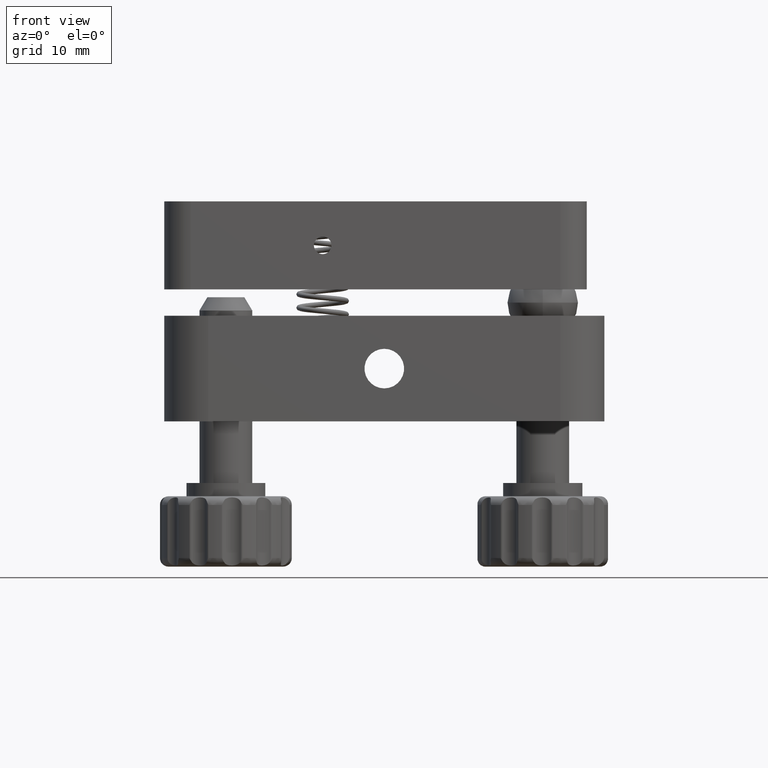
[diagram: clean part render]
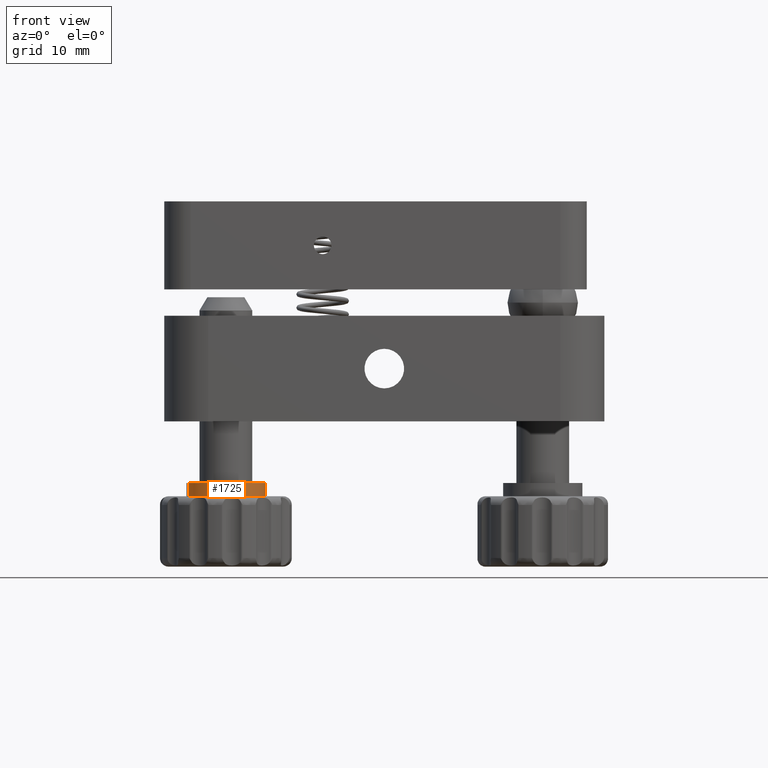
[diagram: same view with one face highlighted and labeled with its STEP entity id]
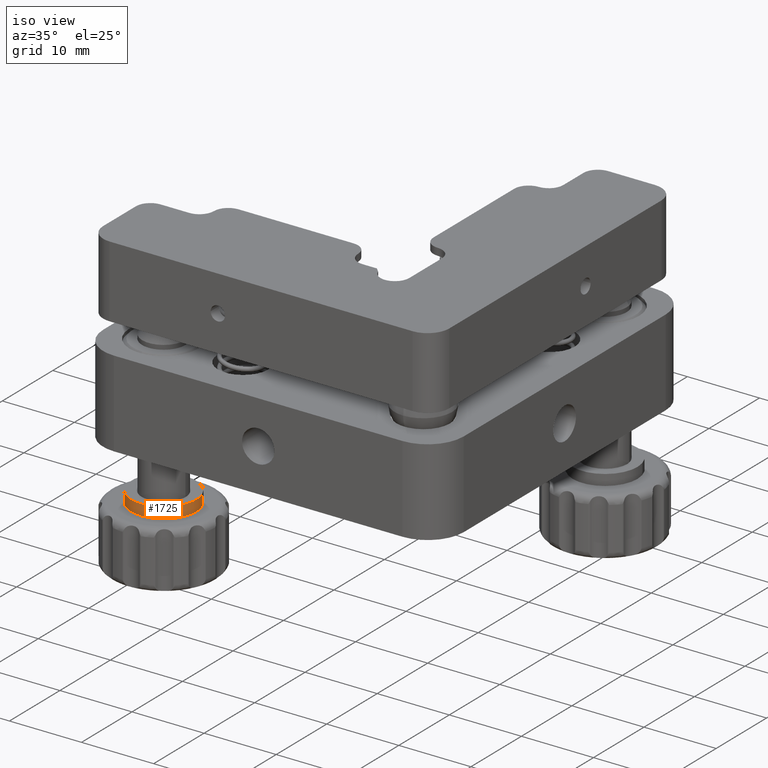
[diagram: same view with one face highlighted and labeled with its STEP entity id]
A machine part, front view. The second image highlights one B-rep face of the part: STEP entity #1725.
A second angle (iso view) of the same face is appended — the face is thin or edge-on in the first view.
In plain terms, the highlighted cylindrical surface (partial cylindrical patch) has radius 4.5 mm, axis along (-0, 0, -1).
Its self-contained STEP definition (entity closure, byte-faithful):
#269 = VECTOR ( 'NONE', #298, 1000.000000000000000 ) ;
#298 = DIRECTION ( 'NONE',  ( -2.193185720357693324E-18, 6.611512007216132848E-17, -1.000000000000000000 ) ) ;
#439 = AXIS2_PLACEMENT_3D ( 'NONE', #7443, #5000, #12826 ) ;
#591 = DIRECTION ( 'NONE',  ( -0.9363679154104279645, -0.3510201233404284249, 0.000000000000000000 ) ) ;
#615 = VERTEX_POINT ( 'NONE', #11719 ) ;
#853 = CARTESIAN_POINT ( 'NONE',  ( -13.78634438065303591, -16.42040944496808663, -22.00041507641944705 ) ) ;
#1064 = DIRECTION ( 'NONE',  ( 0.9363679154104279645, 0.3510201233404284249, 0.000000000000000000 ) ) ;
#1232 = DIRECTION ( 'NONE',  ( 2.193185720357693324E-18, -6.611512007216132848E-17, 1.000000000000000000 ) ) ;
#1301 = CARTESIAN_POINT ( 'NONE',  ( -22.21365561934689836, -19.57959055503194890, -22.00041507641944705 ) ) ;
#1624 = VERTEX_POINT ( 'NONE', #12741 ) ;
#1630 = EDGE_LOOP ( 'NONE', ( #7675, #8786, #4552, #9606 ) ) ;
#1725 = ADVANCED_FACE ( 'NONE', ( #3682 ), #15468, .T. ) ;
#1852 = EDGE_CURVE ( 'NONE', #615, #1624, #4027, .T. ) ;
#3555 = CARTESIAN_POINT ( 'NONE',  ( -17.99999999999996092, -18.00000000000000355, -23.50041507641943284 ) ) ;
#3682 = FACE_OUTER_BOUND ( 'NONE', #1630, .T. ) ;
#4027 = LINE ( 'NONE', #1301, #15895 ) ;
#4552 = ORIENTED_EDGE ( 'NONE', *, *, #1852, .T. ) ;
#4747 = CARTESIAN_POINT ( 'NONE',  ( -13.78634438065302881, -16.42040944496808663, -23.50041507641943284 ) ) ;
#4749 = CIRCLE ( 'NONE', #7822, 4.500000000000013323 ) ;
#5000 = DIRECTION ( 'NONE',  ( -2.193185720357693324E-18, 6.611512007216132848E-17, -1.000000000000000000 ) ) ;
#5829 = LINE ( 'NONE', #12241, #269 ) ;
#7443 = CARTESIAN_POINT ( 'NONE',  ( -17.99999999999996092, -18.00000000000001421, -22.00041507641944705 ) ) ;
#7675 = ORIENTED_EDGE ( 'NONE', *, *, #16825, .F. ) ;
#7701 = DIRECTION ( 'NONE',  ( -2.193185720357693324E-18, 6.611512007216132848E-17, -1.000000000000000000 ) ) ;
#7822 = AXIS2_PLACEMENT_3D ( 'NONE', #13272, #1232, #1064 ) ;
#8650 = AXIS2_PLACEMENT_3D ( 'NONE', #3555, #11555, #591 ) ;
#8786 = ORIENTED_EDGE ( 'NONE', *, *, #10225, .F. ) ;
#9104 = VERTEX_POINT ( 'NONE', #4747 ) ;
#9606 = ORIENTED_EDGE ( 'NONE', *, *, #15154, .T. ) ;
#10225 = EDGE_CURVE ( 'NONE', #615, #13696, #4749, .T. ) ;
#11555 = DIRECTION ( 'NONE',  ( 2.193185720357693324E-18, -6.611512007216132848E-17, 1.000000000000000000 ) ) ;
#11719 = CARTESIAN_POINT ( 'NONE',  ( -22.21365561934688415, -19.57959055503194534, -22.00041507641944705 ) ) ;
#12241 = CARTESIAN_POINT ( 'NONE',  ( -13.78634438065302170, -16.42040944496808308, -22.00041507641944705 ) ) ;
#12741 = CARTESIAN_POINT ( 'NONE',  ( -22.21365561934689836, -19.57959055503193468, -23.50041507641943284 ) ) ;
#12826 = DIRECTION ( 'NONE',  ( -0.9363679154104279645, -0.3510201233404284249, 0.000000000000000000 ) ) ;
#13157 = CIRCLE ( 'NONE', #8650, 4.500000000000013323 ) ;
#13272 = CARTESIAN_POINT ( 'NONE',  ( -17.99999999999996092, -18.00000000000001421, -22.00041507641944705 ) ) ;
#13696 = VERTEX_POINT ( 'NONE', #853 ) ;
#15154 = EDGE_CURVE ( 'NONE', #1624, #9104, #13157, .T. ) ;
#15468 = CYLINDRICAL_SURFACE ( 'NONE', #439, 4.500000000000013323 ) ;
#15895 = VECTOR ( 'NONE', #7701, 1000.000000000000000 ) ;
#16825 = EDGE_CURVE ( 'NONE', #13696, #9104, #5829, .T. ) ;